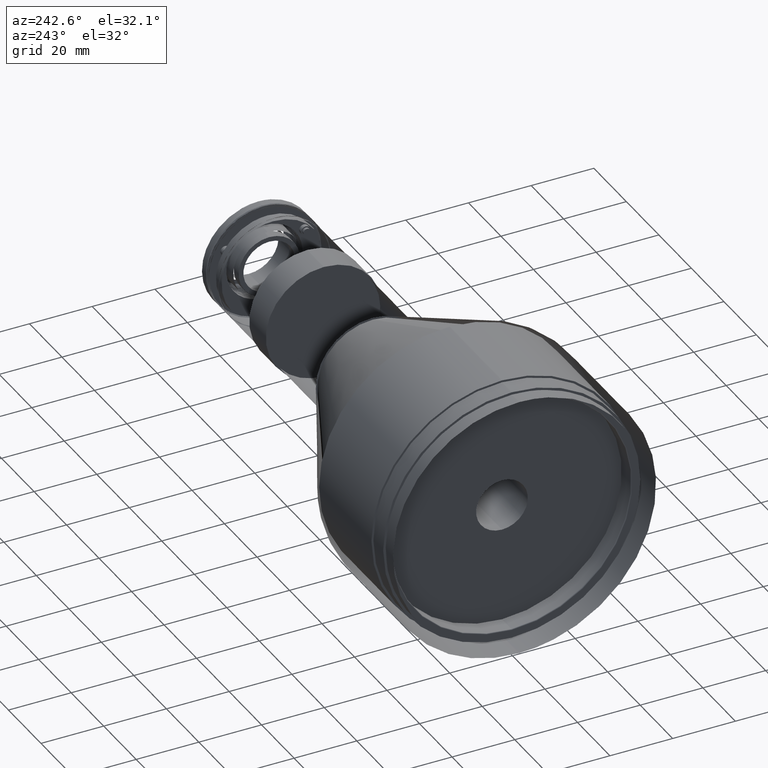
[diagram: clean part render]
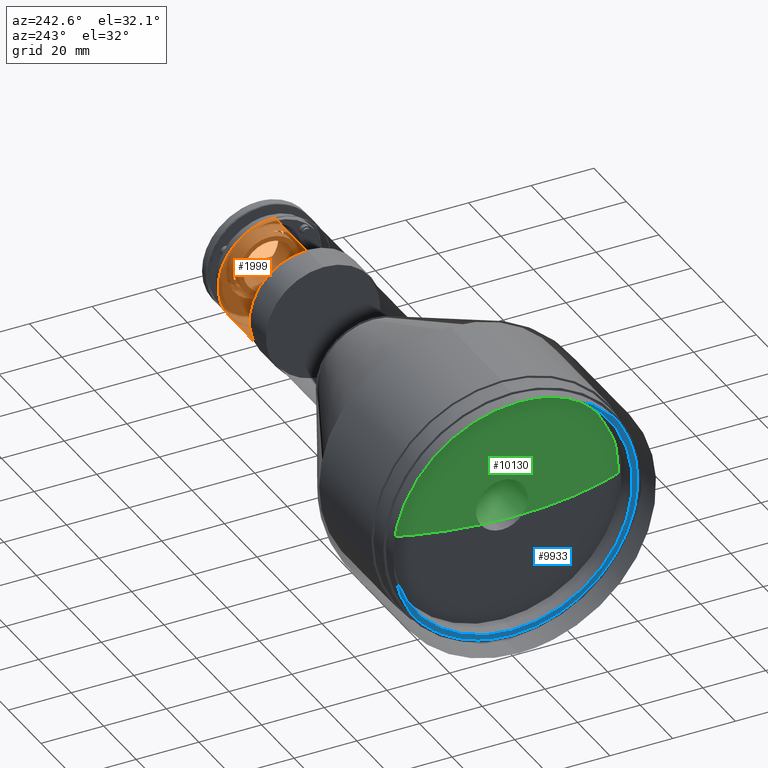
[diagram: same view with three faces highlighted in distinct colors, each labeled with its STEP entity id]
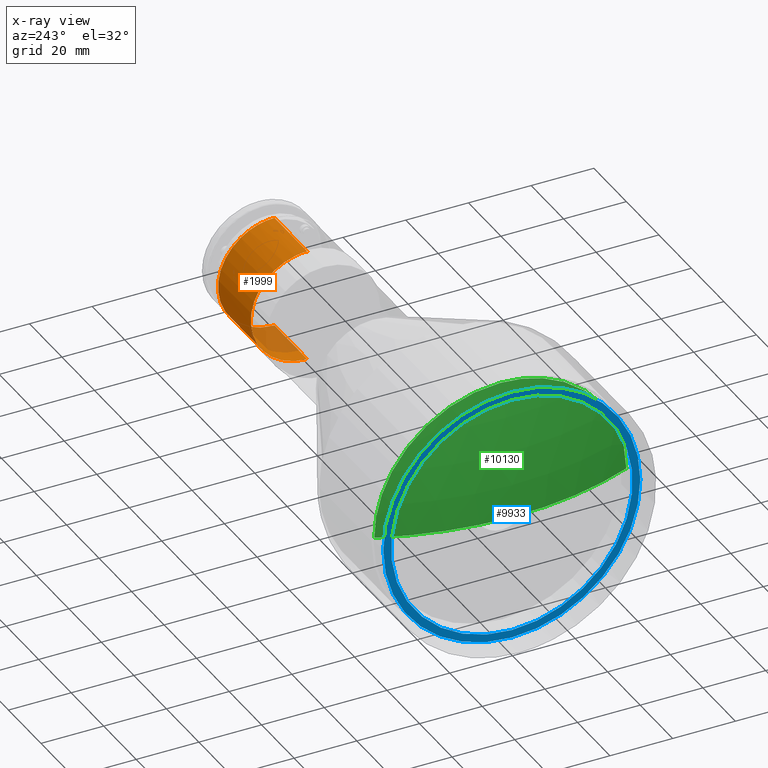
[diagram: x-ray of the same camera — body ghosted, the three highlighted faces saturated]
A machine part, auxiliary view with three faces highlighted in distinct colors.
The next image is the same camera in x-ray (body ghosted, the three faces saturated) — at least one of them is partly hidden behind the body in this view.
Their STEP definitions:

[orange] entity #1999 — the highlighted cylindrical surface (partial cylindrical patch) has radius 18 mm, axis along (-1, 0, 0).
#66 = EDGE_LOOP ( 'NONE', ( #9824, #2728, #6900, #1450, #1082, #88 ) ) ;
#88 = ORIENTED_EDGE ( 'NONE', *, *, #3216, .F. ) ;
#618 = EDGE_CURVE ( 'NONE', #6036, #1033, #1853, .T. ) ;
#805 = CARTESIAN_POINT ( 'NONE',  ( 106.2747024783132019, 9.166646976495830042E-10, -146.1114151917026049 ) ) ;
#809 = B_SPLINE_CURVE_WITH_KNOTS ( 'NONE', 3,
 ( #3468, #5978, #3418, #9210 ),
 .UNSPECIFIED., .F., .F.,
 ( 4, 4 ),
 ( 0.000000000000000000, 0.07044657495641525047 ),
 .UNSPECIFIED. ) ;
#874 = CARTESIAN_POINT ( 'NONE',  ( 126.4281150471850168, 18.05512120691257394, -162.5113199847051249 ) ) ;
#1033 = VERTEX_POINT ( 'NONE', #9471 ) ;
#1082 = ORIENTED_EDGE ( 'NONE', *, *, #5716, .F. ) ;
#1450 = ORIENTED_EDGE ( 'NONE', *, *, #2148, .T. ) ;
#1546 = DIRECTION ( 'NONE',  ( -1.000000000000000000, 0.000000000000000000, 0.000000000000000000 ) ) ;
#1573 = CARTESIAN_POINT ( 'NONE',  ( 106.2747024788050396, 17.64803913856098916, -159.9468349615696923 ) ) ;
#1744 = CARTESIAN_POINT ( 'NONE',  ( 126.4281150471850168, 12.63834391011445923, -151.1183412792845502 ) ) ;
#1802 = CARTESIAN_POINT ( 'NONE',  ( 126.4281150500136164, 5.288614875234692647, -146.9058767634829792 ) ) ;
#1853 = B_SPLINE_CURVE_WITH_KNOTS ( 'NONE', 3,
 ( #9828, #9021, #8963, #2358 ),
 .UNSPECIFIED., .F., .F.,
 ( 4, 4 ),
 ( 0.9050760576601786234, 1.000000000000000000 ),
 .UNSPECIFIED. ) ;
#1999 = ADVANCED_FACE ( 'NONE', ( #10508 ), #10667, .F. ) ;
#2148 = EDGE_CURVE ( 'NONE', #1033, #7661, #2407, .T. ) ;
#2358 = CARTESIAN_POINT ( 'NONE',  ( 126.4281150474186006, -3.333334152902454642E-10, -146.1114151917643937 ) ) ;
#2386 = CARTESIAN_POINT ( 'NONE',  ( 116.2507407001699988, -5.329070518201590111E-14, -164.1114151909949896 ) ) ;
#2407 = LINE ( 'NONE', #3227, #7800 ) ;
#2538 = CARTESIAN_POINT ( 'NONE',  ( 106.2747024788046701, 14.99855435290721495, -153.9212051221926174 ) ) ;
#2550 = VERTEX_POINT ( 'NONE', #5684 ) ;
#2607 = AXIS2_PLACEMENT_3D ( 'NONE', #2386, #8829, #4827 ) ;
#2608 = CARTESIAN_POINT ( 'NONE',  ( 126.4281150471850168, 16.36985617432480922, -156.3283878045972983 ) ) ;
#2722 = EDGE_CURVE ( 'NONE', #9056, #10318, #8384, .T. ) ;
#2728 = ORIENTED_EDGE ( 'NONE', *, *, #6247, .T. ) ;
#3216 = EDGE_CURVE ( 'NONE', #10318, #2550, #809, .T. ) ;
#3227 = CARTESIAN_POINT ( 'NONE',  ( 116.2507407001699988, 1.355854680848614041E-28, -146.1114151909995655 ) ) ;
#3303 = CARTESIAN_POINT ( 'NONE',  ( 106.2747024788036612, 8.471570796190334818, -148.0792755281651694 ) ) ;
#3318 = CARTESIAN_POINT ( 'NONE',  ( 126.4281150471850452, 10.12848124237486402, -179.1434334915545321 ) ) ;
#3355 = CARTESIAN_POINT ( 'NONE',  ( 106.2747024788051107, 17.97191287706627705, -166.5212619626177286 ) ) ;
#3418 = CARTESIAN_POINT ( 'NONE',  ( 106.2747024788031212, 2.655720337299735334, -181.9638781138802130 ) ) ;
#3468 = CARTESIAN_POINT ( 'NONE',  ( 106.2747024782252083, -2.619637534315019686E-14, -182.1114151905345011 ) ) ;
#3703 = CARTESIAN_POINT ( 'NONE',  ( 126.4281150500136164, 5.288614875234692647, -146.9058767634829792 ) ) ;
#4063 = CARTESIAN_POINT ( 'NONE',  ( 106.2747024788051249, 18.13177530747962507, -164.3004604834891609 ) ) ;
#4267 = DIRECTION ( 'NONE',  ( -1.000000000000000000, 0.000000000000000000, 0.000000000000000000 ) ) ;
#4374 = CARTESIAN_POINT ( 'NONE',  ( 116.2507407001699988, -1.043770461255672764E-13, -182.1114151909903853 ) ) ;
#4449 = CARTESIAN_POINT ( 'NONE',  ( 106.2747024782252083, -2.619637534315019686E-14, -182.1114151905345011 ) ) ;
#4827 = DIRECTION ( 'NONE',  ( 0.000000000000000000, 2.960594732334979162E-15, 1.000000000000000000 ) ) ;
#4851 = CARTESIAN_POINT ( 'NONE',  ( 106.2747024783132019, 9.166646976495830042E-10, -146.1114151917026049 ) ) ;
#4875 = CARTESIAN_POINT ( 'NONE',  ( 106.2747024788039880, 10.37260048643856614, -149.2384137093806942 ) ) ;
#4934 = CARTESIAN_POINT ( 'NONE',  ( 106.2747024782041478, 3.951219512062746908, -181.6723908001674204 ) ) ;
#4949 = CARTESIAN_POINT ( 'NONE',  ( 126.4281150471850168, 14.72638626035294962, -174.6793503808220009 ) ) ;
#4969 = B_SPLINE_CURVE_WITH_KNOTS ( 'NONE', 3,
 ( #6583, #8355, #5985, #9059, #3318, #8298, #4949, #9219, #8252, #10026, #874, #6687, #2608, #9162, #1744, #5928, #10674, #1802 ),
 .UNSPECIFIED., .F., .F.,
 ( 4, 2, 2, 2, 2, 2, 2, 2, 4 ),
 ( 0.000000000000000000, 0.1131345072075223279, 0.2262690144150446558, 0.3394035216225669838, 0.4525380288300893117, 0.5656725360376115841, 0.6788070432451339675, 0.7919415504526563510, 0.9050760576601786234 ),
 .UNSPECIFIED. ) ;
#5684 = CARTESIAN_POINT ( 'NONE',  ( 106.2747024782041478, 3.951219512062746908, -181.6723908001674204 ) ) ;
#5716 = EDGE_CURVE ( 'NONE', #2550, #7661, #8849, .T. ) ;
#5854 = CARTESIAN_POINT ( 'NONE',  ( 106.2747024788030359, 4.379773275598902060, -146.5155463582928803 ) ) ;
#5928 = CARTESIAN_POINT ( 'NONE',  ( 126.4281150471850168, 9.252395101944451028, -148.5248539492389455 ) ) ;
#5978 = CARTESIAN_POINT ( 'NONE',  ( 106.2747024788029648, 1.327886653998436861, -182.1114151898024147 ) ) ;
#5985 = CARTESIAN_POINT ( 'NONE',  ( 126.4281150471850736, 4.264506658357610114, -181.7285003479192653 ) ) ;
#6036 = VERTEX_POINT ( 'NONE', #3703 ) ;
#6247 = EDGE_CURVE ( 'NONE', #9056, #6036, #4969, .T. ) ;
#6517 = CARTESIAN_POINT ( 'NONE',  ( 106.2747024788044854, 13.38441543293502356, -176.3447482381345708 ) ) ;
#6583 = CARTESIAN_POINT ( 'NONE',  ( 126.4281150476084008, -2.408213285858399880E-14, -182.1114151905260030 ) ) ;
#6687 = CARTESIAN_POINT ( 'NONE',  ( 126.4281150471850168, 17.18139688911121965, -158.3367024358585411 ) ) ;
#6723 = CARTESIAN_POINT ( 'NONE',  ( 106.2747024788035048, 6.088008446784721528, -181.1916132892465328 ) ) ;
#6900 = ORIENTED_EDGE ( 'NONE', *, *, #618, .T. ) ;
#7366 = CARTESIAN_POINT ( 'NONE',  ( 106.2747024788026948, 2.190208659723375195, -146.1114151923793258 ) ) ;
#7661 = VERTEX_POINT ( 'NONE', #4851 ) ;
#7800 = VECTOR ( 'NONE', #1546, 1000.000000000000000 ) ;
#7917 = VECTOR ( 'NONE', #4267, 1000.000000000000000 ) ;
#8181 = CARTESIAN_POINT ( 'NONE',  ( 106.2747024788037891, 8.135457328365017560, -180.3167028460164829 ) ) ;
#8239 = CARTESIAN_POINT ( 'NONE',  ( 106.2747024788042296, 11.78419728697699398, -177.8929139565588002 ) ) ;
#8252 = CARTESIAN_POINT ( 'NONE',  ( 126.4281150471850168, 17.48347931296293467, -168.8942655523061092 ) ) ;
#8285 = CARTESIAN_POINT ( 'NONE',  ( 106.2747024788049686, 17.00458278438021154, -157.8152911251399644 ) ) ;
#8298 = CARTESIAN_POINT ( 'NONE',  ( 126.4281150471850168, 13.36059750527667411, -176.3605841737256696 ) ) ;
#8355 = CARTESIAN_POINT ( 'NONE',  ( 126.4281150471850168, 2.132535220263326980, -182.1114151909904137 ) ) ;
#8384 = LINE ( 'NONE', #4374, #7917 ) ;
#8829 = DIRECTION ( 'NONE',  ( -1.000000000000000000, 0.000000000000000000, 0.000000000000000000 ) ) ;
#8849 = B_SPLINE_CURVE_WITH_KNOTS ( 'NONE', 3,
 ( #4934, #6723, #8181, #8239, #6517, #9959, #9797, #3355, #4063, #1573, #8285, #2538, #10660, #4875, #3303, #5854, #7366, #805 ),
 .UNSPECIFIED., .F., .F.,
 ( 4, 2, 2, 2, 2, 2, 2, 2, 4 ),
 ( 0.07044657495641525047, 0.1866407530868633424, 0.3028349312173114205, 0.4190291093477595541, 0.5352232874782075767, 0.6514174656086557658, 0.7676116437391038438, 0.8838058218695519219, 1.000000000000000000 ),
 .UNSPECIFIED. ) ;
#8963 = CARTESIAN_POINT ( 'NONE',  ( 126.4281150471849884, 1.789274159426924804, -146.1114151909995655 ) ) ;
#9021 = CARTESIAN_POINT ( 'NONE',  ( 126.4281150471849884, 3.578313469935475055, -146.3801666526572092 ) ) ;
#9056 = VERTEX_POINT ( 'NONE', #9280 ) ;
#9059 = CARTESIAN_POINT ( 'NONE',  ( 126.4281150471850452, 8.263008214934975726, -180.2443133096038537 ) ) ;
#9162 = CARTESIAN_POINT ( 'NONE',  ( 126.4281150471850168, 14.09802938136016870, -152.7187300804601762 ) ) ;
#9210 = CARTESIAN_POINT ( 'NONE',  ( 106.2747024782041478, 3.951219512062746908, -181.6723908001674204 ) ) ;
#9219 = CARTESIAN_POINT ( 'NONE',  ( 126.4281150471850168, 16.78809969363906163, -170.9456975338553377 ) ) ;
#9280 = CARTESIAN_POINT ( 'NONE',  ( 126.4281150476084008, -2.408213285858399880E-14, -182.1114151905260030 ) ) ;
#9471 = CARTESIAN_POINT ( 'NONE',  ( 126.4281150474186006, -3.333334152902454642E-10, -146.1114151917643937 ) ) ;
#9797 = CARTESIAN_POINT ( 'NONE',  ( 106.2747024788049259, 16.86961133445967675, -170.7607179625540823 ) ) ;
#9824 = ORIENTED_EDGE ( 'NONE', *, *, #2722, .F. ) ;
#9828 = CARTESIAN_POINT ( 'NONE',  ( 126.4281150500136164, 5.288614875234692647, -146.9058767634829792 ) ) ;
#9959 = CARTESIAN_POINT ( 'NONE',  ( 106.2747024788048265, 15.92749635980185374, -172.7781258491458800 ) ) ;
#10026 = CARTESIAN_POINT ( 'NONE',  ( 126.4281150471850168, 18.11707382185923976, -164.6765192511457769 ) ) ;
#10318 = VERTEX_POINT ( 'NONE', #4449 ) ;
#10508 = FACE_OUTER_BOUND ( 'NONE', #66, .T. ) ;
#10660 = CARTESIAN_POINT ( 'NONE',  ( 106.2747024788044570, 13.63657215877006657, -152.1598080320365511 ) ) ;
#10667 = CYLINDRICAL_SURFACE ( 'NONE', #2607, 17.99999999999540989 ) ;
#10674 = CARTESIAN_POINT ( 'NONE',  ( 126.4281150471850168, 7.327026914392313017, -147.5324410652757479 ) ) ;

[blue] entity #9933 — the highlighted planar face has unit normal (-1, 0, 0).
#64 = AXIS2_PLACEMENT_3D ( 'NONE', #5640, #6559, #8925 ) ;
#259 = EDGE_CURVE ( 'NONE', #5955, #10104, #4337, .T. ) ;
#290 = ORIENTED_EDGE ( 'NONE', *, *, #5281, .T. ) ;
#406 = EDGE_CURVE ( 'NONE', #6136, #4330, #7816, .T. ) ;
#442 = DIRECTION ( 'NONE',  ( 1.000000000000000000, 2.306956934299440121E-16, -8.835418835819249196E-36 ) ) ;
#1159 = CARTESIAN_POINT ( 'NONE',  ( -19.55529751999999988, 0.000000000000000000, -202.6114151903070137 ) ) ;
#1815 = CARTESIAN_POINT ( 'NONE',  ( -19.55529752191580073, 7.607527323313646988E-14, -205.1114151899999740 ) ) ;
#1908 = ORIENTED_EDGE ( 'NONE', *, *, #8153, .T. ) ;
#2061 = DIRECTION ( 'NONE',  ( -1.000000000000000000, -4.672587520157280000E-11, 5.649061949422000105E-22 ) ) ;
#2379 = ORIENTED_EDGE ( 'NONE', *, *, #406, .T. ) ;
#2686 = CARTESIAN_POINT ( 'NONE',  ( -19.55529751999999988, -41.50591718999999813, -164.1114151909999919 ) ) ;
#2924 = CARTESIAN_POINT ( 'NONE',  ( -19.55529752191580073, -4.956815445924119694E-10, -164.1114151904999972 ) ) ;
#3980 = AXIS2_PLACEMENT_3D ( 'NONE', #9953, #6560, #10703 ) ;
#4167 = ORIENTED_EDGE ( 'NONE', *, *, #259, .T. ) ;
#4234 = CIRCLE ( 'NONE', #64, 40.99999999949999108 ) ;
#4330 = VERTEX_POINT ( 'NONE', #6324 ) ;
#4337 = CIRCLE ( 'NONE', #9023, 40.99999999949999108 ) ;
#5181 = DIRECTION ( 'NONE',  ( 0.000000000000000000, 0.000000000000000000, 1.000000000000000000 ) ) ;
#5242 = DIRECTION ( 'NONE',  ( -1.000000000000000000, 0.000000000000000000, 0.000000000000000000 ) ) ;
#5265 = DIRECTION ( 'NONE',  ( 0.000000000000000000, 1.208979377069400155E-11, 1.000000000000000000 ) ) ;
#5281 = EDGE_CURVE ( 'NONE', #4330, #6136, #8007, .T. ) ;
#5640 = CARTESIAN_POINT ( 'NONE',  ( -19.55529752191580073, -4.956815445924119694E-10, -164.1114151904999972 ) ) ;
#5955 = VERTEX_POINT ( 'NONE', #1815 ) ;
#6136 = VERTEX_POINT ( 'NONE', #1159 ) ;
#6324 = CARTESIAN_POINT ( 'NONE',  ( -19.55529751999999988, 0.000000000000000000, -125.6114151910259977 ) ) ;
#6559 = DIRECTION ( 'NONE',  ( -1.000000000000000000, -4.672587520157280000E-11, 5.649061949422000105E-22 ) ) ;
#6560 = DIRECTION ( 'NONE',  ( 1.000000000000000000, -1.441848083933505908E-16, 2.883696167895989513E-17 ) ) ;
#6854 = DIRECTION ( 'NONE',  ( -2.703462674800904588E-16, 0.9999999999526040240, 9.736102970337053280E-06 ) ) ;
#7671 = PLANE ( 'NONE',  #8636 ) ;
#7778 = FACE_OUTER_BOUND ( 'NONE', #10280, .T. ) ;
#7816 = CIRCLE ( 'NONE', #3980, 38.50003535420481171 ) ;
#8007 = CIRCLE ( 'NONE', #8873, 38.50003535420499645 ) ;
#8153 = EDGE_CURVE ( 'NONE', #10104, #5955, #4234, .T. ) ;
#8194 = CARTESIAN_POINT ( 'NONE',  ( -19.55529752191580073, -2.928251680180395822E-24, -123.1114151909999919 ) ) ;
#8636 = AXIS2_PLACEMENT_3D ( 'NONE', #2686, #5242, #5181 ) ;
#8873 = AXIS2_PLACEMENT_3D ( 'NONE', #10349, #442, #6854 ) ;
#8925 = DIRECTION ( 'NONE',  ( 0.000000000000000000, 1.208979377069400155E-11, 1.000000000000000000 ) ) ;
#9004 = EDGE_LOOP ( 'NONE', ( #2379, #290 ) ) ;
#9023 = AXIS2_PLACEMENT_3D ( 'NONE', #2924, #2061, #5265 ) ;
#9933 = ADVANCED_FACE ( 'NONE', ( #10102, #7778 ), #7671, .T. ) ;
#9953 = CARTESIAN_POINT ( 'NONE',  ( -19.55529751999999988, -3.535442850460519901E-05, -164.1114151905130143 ) ) ;
#10102 = FACE_BOUND ( 'NONE', #9004, .T. ) ;
#10104 = VERTEX_POINT ( 'NONE', #8194 ) ;
#10280 = EDGE_LOOP ( 'NONE', ( #1908, #4167 ) ) ;
#10349 = CARTESIAN_POINT ( 'NONE',  ( -19.55529751999999988, 3.535442870294070122E-05, -164.1114151905130143 ) ) ;
#10703 = DIRECTION ( 'NONE',  ( 1.802308449867278271E-16, 0.9999999999525946981, -9.737076035227335927E-06 ) ) ;

[green] entity #10130 — the highlighted spherical surface has radius 103.562 mm.
#23 = CARTESIAN_POINT ( 'NONE',  ( -12.48774575269055198, 24.52158963390838409, -132.1480886426422217 ) ) ;
#189 = CARTESIAN_POINT ( 'NONE',  ( -12.48774575263562880, 30.28614983407032923, -137.5461798176890227 ) ) ;
#402 = DIRECTION ( 'NONE',  ( 2.054468784391190237E-12, 1.224646796003992963E-16, -1.000000000000000000 ) ) ;
#404 = ORIENTED_EDGE ( 'NONE', *, *, #4979, .T. ) ;
#873 = EDGE_CURVE ( 'NONE', #2715, #9130, #7392, .T. ) ;
#1006 = CARTESIAN_POINT ( 'NONE',  ( -12.48774575287405852, 5.262102635983671561, -124.1705479237536309 ) ) ;
#1666 = CARTESIAN_POINT ( 'NONE',  ( -12.48774575292424061, -5.944251793749709221E-11, -123.9114151910000032 ) ) ;
#1768 = CARTESIAN_POINT ( 'NONE',  ( -12.48774575257991692, 36.13308500942963519, -146.2967366950632027 ) ) ;
#1879 = CARTESIAN_POINT ( 'NONE',  ( -12.48774575254116570, 40.20000000004258567, -161.4803313437137149 ) ) ;
#2164 = CARTESIAN_POINT ( 'NONE',  ( -12.48774575302351408, -10.42315925413340594, -125.1971459138256364 ) ) ;
#2176 = DIRECTION ( 'NONE',  ( 2.054468784391190237E-12, -3.144020888506971909E-25, -1.000000000000000000 ) ) ;
#2269 = CARTESIAN_POINT ( 'NONE',  ( -12.48774575322875080, -31.96332654847638821, -139.5898255570790241 ) ) ;
#2324 = CARTESIAN_POINT ( 'NONE',  ( -12.48774575304761925, -12.95306946622848976, -125.9645857864875325 ) ) ;
#2715 = VERTEX_POINT ( 'NONE', #9298 ) ;
#2782 = CARTESIAN_POINT ( 'NONE',  ( -12.48774575267330178, 40.20000000004797158, -164.1114151910423971 ) ) ;
#2820 = AXIS2_PLACEMENT_3D ( 'NONE', #8742, #402, #10209 ) ;
#2984 = DIRECTION ( 'NONE',  ( -2.054468784391190237E-12, 3.143360148565440255E-25, 1.000000000000000000 ) ) ;
#2993 = FACE_OUTER_BOUND ( 'NONE', #8180, .T. ) ;
#3392 = CARTESIAN_POINT ( 'NONE',  ( -12.48774575267107778, 26.56523537335322871, -133.8252653569719826 ) ) ;
#3446 = CARTESIAN_POINT ( 'NONE',  ( -12.48774575289912825, 2.631083847328512970, -123.9114151909999464 ) ) ;
#3515 = AXIS2_PLACEMENT_3D ( 'NONE', #4660, #2984, #4011 ) ;
#3838 = CARTESIAN_POINT ( 'NONE',  ( -12.48774575328767078, -38.14682940463554672, -151.1583457248199807 ) ) ;
#3897 = CARTESIAN_POINT ( 'NONE',  ( -12.48774575330723380, -40.20000000015362218, -161.4803313435997723 ) ) ;
#3949 = CARTESIAN_POINT ( 'NONE',  ( -12.48774575326848435, -36.13308500951088575, -146.2967366949877146 ) ) ;
#4003 = CARTESIAN_POINT ( 'NONE',  ( -12.48774575329497871, -38.91426927730488927, -153.6882559369127250 ) ) ;
#4011 = DIRECTION ( 'NONE',  ( 1.000000000000000000, 0.000000000000000000, 2.054558835495901942E-12 ) ) ;
#4503 = VERTEX_POINT ( 'NONE', #2782 ) ;
#4660 = CARTESIAN_POINT ( 'NONE',  ( 82.95359704713609972, -1.584066211535169798E-11, -164.1114151907869712 ) ) ;
#4815 = CARTESIAN_POINT ( 'NONE',  ( -12.48774575300489964, -40.20000000003405205, -164.1114151909829957 ) ) ;
#4932 = EDGE_CURVE ( 'NONE', #9130, #4503, #5236, .T. ) ;
#4970 = CARTESIAN_POINT ( 'NONE',  ( -12.48774575255341723, 38.91426927721206397, -153.6882559370085914 ) ) ;
#4979 = EDGE_CURVE ( 'NONE', #2715, #8475, #6986, .T. ) ;
#5236 = B_SPLINE_CURVE_WITH_KNOTS ( 'NONE', 3,
 ( #1666, #3446, #1006, #5838, #7455, #9183, #7615, #23, #3392, #189, #9131, #5893, #1768, #6657, #4970, #6007, #1879, #9887 ),
 .UNSPECIFIED., .F., .F.,
 ( 4, 2, 2, 2, 2, 2, 2, 2, 4 ),
 ( 0.000000000000000000, 0.06249999999999991673, 0.1249999999999998890, 0.1874999999999998612, 0.2499999999999998335, 0.3124999999999998335, 0.3749999999999998890, 0.4374999999999998890, 0.5000000000000000000 ),
 .UNSPECIFIED. ) ;
#5490 = DIRECTION ( 'NONE',  ( 1.530332761633393894E-13, 1.000000000000000000, 0.000000000000000000 ) ) ;
#5727 = CARTESIAN_POINT ( 'NONE',  ( -20.60841295393289840, 1.268268839586037163E-14, -164.1114151909997645 ) ) ;
#5838 = CARTESIAN_POINT ( 'NONE',  ( -12.48774575282488541, 10.42315925403362797, -125.1971459138303828 ) ) ;
#5893 = CARTESIAN_POINT ( 'NONE',  ( -12.48774575259179009, 34.88683028077515758, -143.9651580901804664 ) ) ;
#6007 = CARTESIAN_POINT ( 'NONE',  ( -12.48774575254364194, 39.94086726728886561, -158.8493125550585034 ) ) ;
#6344 = EDGE_CURVE ( 'NONE', #4503, #8475, #7002, .T. ) ;
#6414 = SPHERICAL_SURFACE ( 'NONE', #8448, 103.5620100010689981 ) ;
#6657 = CARTESIAN_POINT ( 'NONE',  ( -12.48774575256073582, 38.14682940454733995, -151.1583457249091396 ) ) ;
#6986 = CIRCLE ( 'NONE', #2820, 103.5620100010689981 ) ;
#7002 = CIRCLE ( 'NONE', #3515, 103.5620100010689981 ) ;
#7074 = ORIENTED_EDGE ( 'NONE', *, *, #4932, .F. ) ;
#7102 = CARTESIAN_POINT ( 'NONE',  ( -12.48774575325660940, -34.88683028085404914, -143.9651580901119416 ) ) ;
#7208 = CARTESIAN_POINT ( 'NONE',  ( -12.48774575330476466, -39.94086726739310933, -158.8493125549504157 ) ) ;
#7249 = ORIENTED_EDGE ( 'NONE', *, *, #873, .F. ) ;
#7258 = CARTESIAN_POINT ( 'NONE',  ( -12.48774575321277425, -30.28614983414646034, -137.5461798176408763 ) ) ;
#7310 = CARTESIAN_POINT ( 'NONE',  ( -12.48774575317731994, -26.56523537343090524, -133.8252653569362849 ) ) ;
#7322 = CARTESIAN_POINT ( 'NONE',  ( -12.48774575292424061, -5.944251793749709221E-11, -123.9114151910000032 ) ) ;
#7392 = B_SPLINE_CURVE_WITH_KNOTS ( 'NONE', 3,
 ( #4815, #3897, #7208, #4003, #3838, #3949, #7102, #2269, #7258, #7310, #9791, #10389, #9738, #2324, #2164, #8927, #10606, #8120 ),
 .UNSPECIFIED., .F., .F.,
 ( 4, 2, 2, 2, 2, 2, 2, 2, 4 ),
 ( 0.000000000000000000, 0.1250000000000000000, 0.2500000000000000000, 0.3750000000000000000, 0.5000000000000000000, 0.6250000000000000000, 0.7500000000000000000, 0.8750000000000000000, 1.000000000000000000 ),
 .UNSPECIFIED. ) ;
#7455 = CARTESIAN_POINT ( 'NONE',  ( -12.48774575280078025, 12.95306946613310473, -125.9645857864950500 ) ) ;
#7615 = CARTESIAN_POINT ( 'NONE',  ( -12.48774575273223952, 20.14625710086177790, -129.2245849102672253 ) ) ;
#7739 = ORIENTED_EDGE ( 'NONE', *, *, #6344, .F. ) ;
#8120 = CARTESIAN_POINT ( 'NONE',  ( -12.48774575292424061, -5.944251793749709221E-11, -123.9114151910000032 ) ) ;
#8180 = EDGE_LOOP ( 'NONE', ( #7249, #404, #7739, #7074 ) ) ;
#8448 = AXIS2_PLACEMENT_3D ( 'NONE', #9596, #2176, #5490 ) ;
#8475 = VERTEX_POINT ( 'NONE', #5727 ) ;
#8742 = CARTESIAN_POINT ( 'NONE',  ( 82.95359704713609972, -1.584066211535169798E-11, -164.1114151907869712 ) ) ;
#8927 = CARTESIAN_POINT ( 'NONE',  ( -12.48774575297434275, -5.262102636092809149, -124.1705479237527214 ) ) ;
#9130 = VERTEX_POINT ( 'NONE', #7322 ) ;
#9131 = CARTESIAN_POINT ( 'NONE',  ( -12.48774575261964515, 31.96332654840009013, -139.5898255571338780 ) ) ;
#9183 = CARTESIAN_POINT ( 'NONE',  ( -12.48774575275445642, 17.81467849597900255, -127.9783301816127192 ) ) ;
#9298 = CARTESIAN_POINT ( 'NONE',  ( -12.48774575300489964, -40.20000000003405205, -164.1114151909829957 ) ) ;
#9596 = CARTESIAN_POINT ( 'NONE',  ( 82.95359704713609972, -1.584066211535169798E-11, -164.1114151907869712 ) ) ;
#9738 = CARTESIAN_POINT ( 'NONE',  ( -12.48774575309394308, -17.81467849606669063, -127.9783301815977978 ) ) ;
#9791 = CARTESIAN_POINT ( 'NONE',  ( -12.48774575315784574, -24.52158963398779079, -132.1480886426124073 ) ) ;
#9887 = CARTESIAN_POINT ( 'NONE',  ( -12.48774575267330178, 40.20000000004797158, -164.1114151910423971 ) ) ;
#10130 = ADVANCED_FACE ( 'NONE', ( #2993 ), #6414, .F. ) ;
#10209 = DIRECTION ( 'NONE',  ( -1.000000000000000000, 0.000000000000000000, -2.054558835495901942E-12 ) ) ;
#10389 = CARTESIAN_POINT ( 'NONE',  ( -12.48774575311615642, -20.14625710094619748, -129.2245849102477280 ) ) ;
#10606 = CARTESIAN_POINT ( 'NONE',  ( -12.48774575294927125, -2.631083847442615031, -123.9114151910000174 ) ) ;